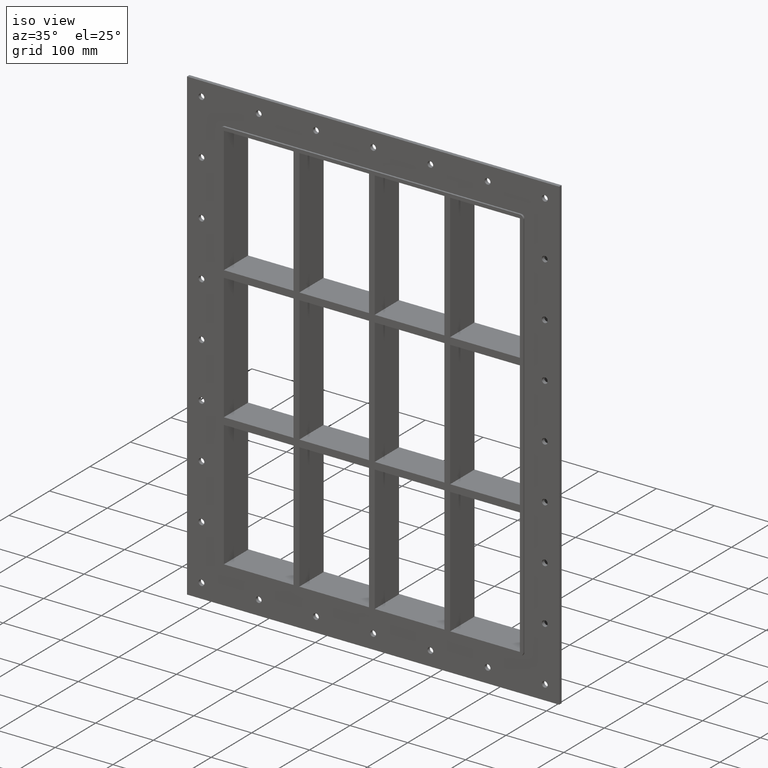
[diagram: clean part render]
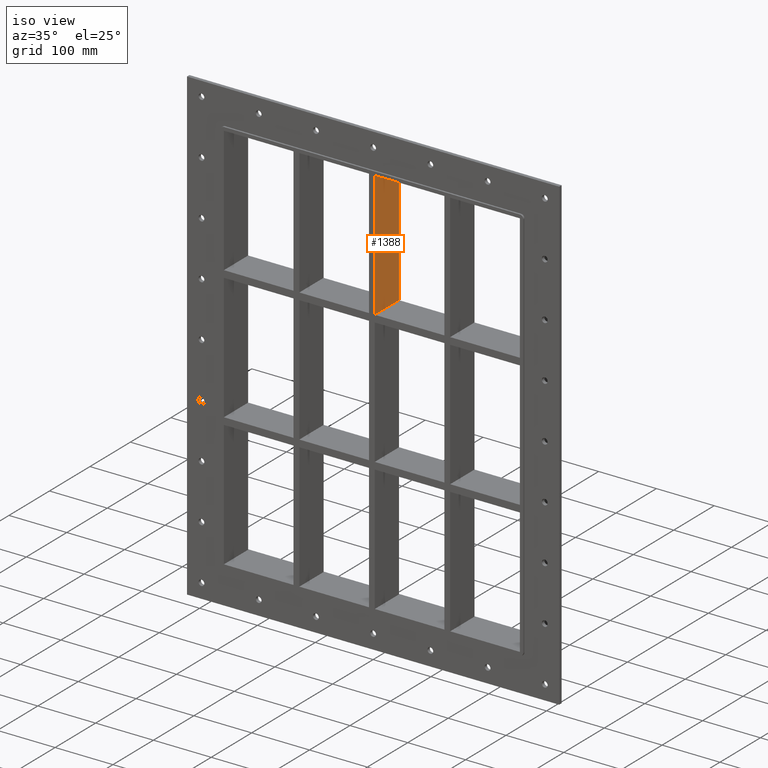
[diagram: same view with one face highlighted and labeled with its STEP entity id]
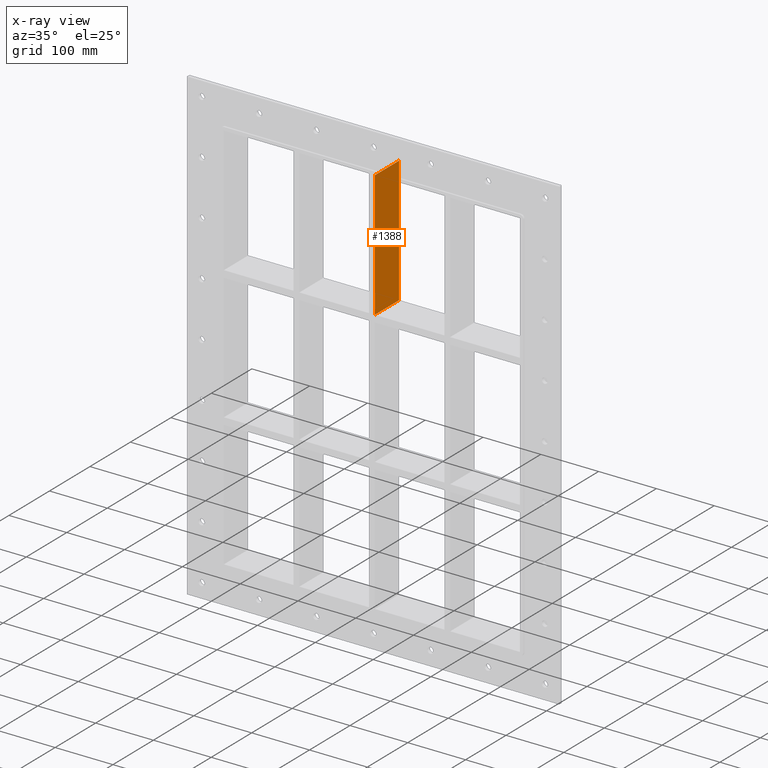
[diagram: x-ray of the same camera — body ghosted, the highlighted face saturated]
A machine part, iso view. The second image highlights one B-rep face of the part: STEP entity #1388.
The next image is the same camera in x-ray: the body ghosted, the highlighted face saturated — about 0% of this face is hidden behind the body in this view.
In plain terms, the highlighted planar face has unit normal (1, 0, 0).
Its self-contained STEP definition (entity closure, byte-faithful):
#1147=CARTESIAN_POINT('',(5.000000000007283,57.0,120.99999999999994));
#1148=VERTEX_POINT('',#1147);
#1155=CARTESIAN_POINT('',(5.000000000007283,-3.0,120.99999999999994));
#1156=VERTEX_POINT('',#1155);
#1157=CARTESIAN_POINT('',(5.000000000007283,-3.0,120.99999999999994));
#1158=DIRECTION('',(0.0,1.0,0.0));
#1159=VECTOR('',#1158,60.0);
#1160=LINE('',#1157,#1159);
#1161=EDGE_CURVE('',#1156,#1148,#1160,.T.);
#1358=CARTESIAN_POINT('',(5.000000000007283,-3.0,339.00000000000011));
#1359=DIRECTION('',(1.0,0.0,0.0));
#1360=DIRECTION('',(0.0,0.0,-1.0));
#1361=AXIS2_PLACEMENT_3D('',#1358,#1359,#1360);
#1362=PLANE('',#1361);
#1363=ORIENTED_EDGE('',*,*,#1161,.T.);
#1364=CARTESIAN_POINT('',(5.000000000007283,57.0,339.00000000000011));
#1365=VERTEX_POINT('',#1364);
#1366=CARTESIAN_POINT('',(5.000000000007283,57.0,339.00000000000011));
#1367=DIRECTION('',(0.0,0.0,-1.0));
#1368=VECTOR('',#1367,218.00000000000017);
#1369=LINE('',#1366,#1368);
#1370=EDGE_CURVE('',#1365,#1148,#1369,.T.);
#1371=ORIENTED_EDGE('',*,*,#1370,.F.);
#1372=CARTESIAN_POINT('',(5.000000000007283,-3.0,339.00000000000011));
#1373=VERTEX_POINT('',#1372);
#1374=CARTESIAN_POINT('',(5.000000000007283,-3.0,339.00000000000006));
#1375=DIRECTION('',(0.0,1.0,0.0));
#1376=VECTOR('',#1375,60.000000000000007);
#1377=LINE('',#1374,#1376);
#1378=EDGE_CURVE('',#1373,#1365,#1377,.T.);
#1379=ORIENTED_EDGE('',*,*,#1378,.F.);
#1380=CARTESIAN_POINT('',(5.000000000007283,-3.0,339.00000000000011));
#1381=DIRECTION('',(0.0,0.0,-1.0));
#1382=VECTOR('',#1381,218.00000000000017);
#1383=LINE('',#1380,#1382);
#1384=EDGE_CURVE('',#1373,#1156,#1383,.T.);
#1385=ORIENTED_EDGE('',*,*,#1384,.T.);
#1386=EDGE_LOOP('',(#1363,#1371,#1379,#1385));
#1387=FACE_OUTER_BOUND('',#1386,.T.);
#1388=ADVANCED_FACE('',(#1387),#1362,.T.);